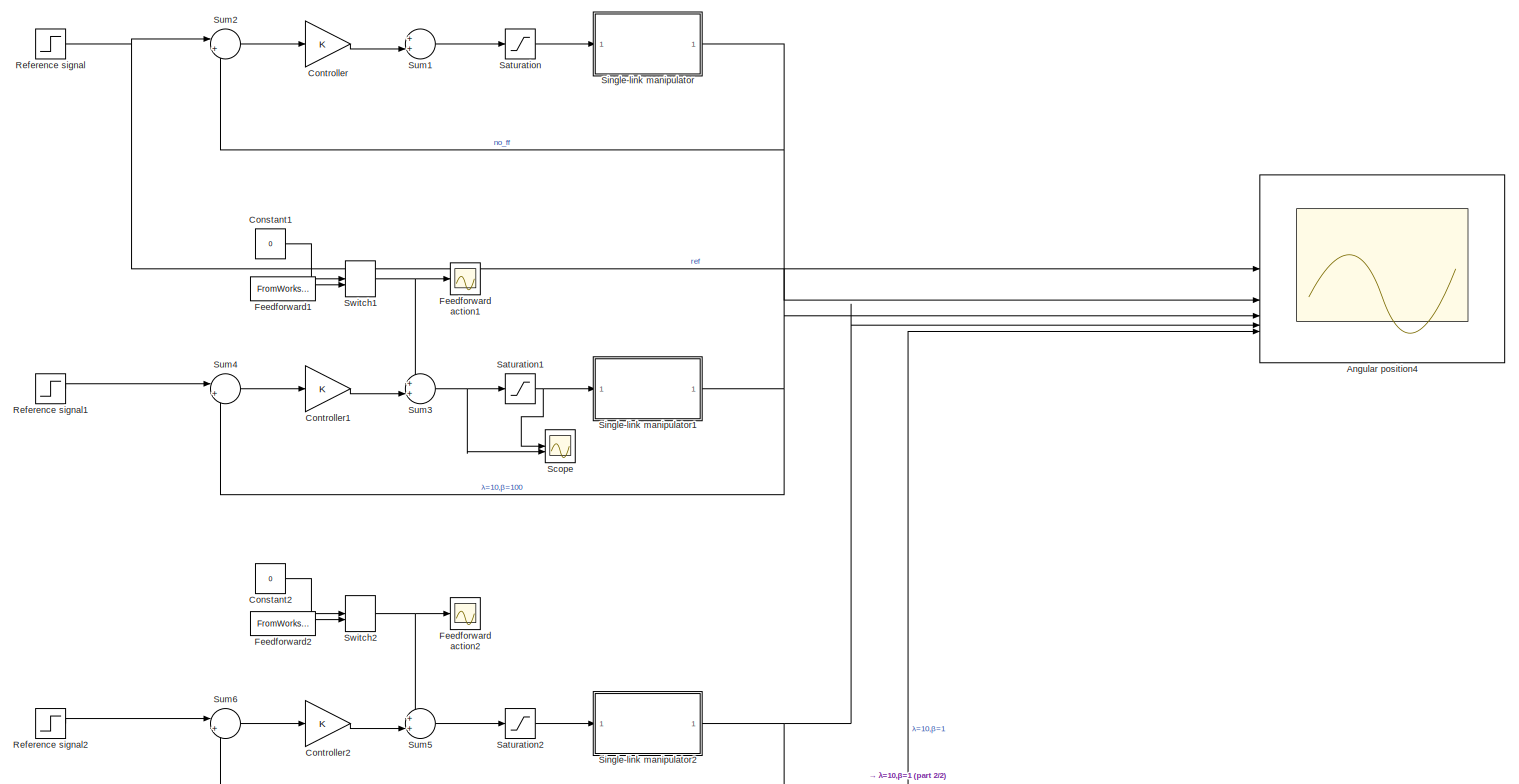
[diagram: root canvas - part 1/2, full width, top band]
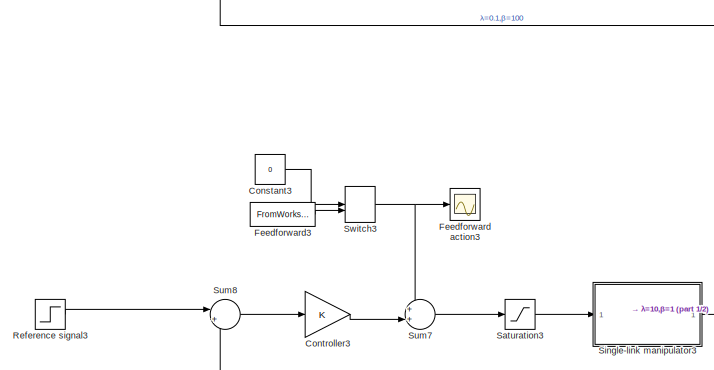
[diagram: root canvas - part 2/2, bottom left region]
MODEL slx_018ba44276c1
KIND model
CONFIG AbsTol = auto
CONFIG EnableMultiTasking = off
CONFIG FixedStep = auto
CONFIG MaxStep = auto
CONFIG MinStep = auto
CONFIG RelTol = 1e-3
CONFIG SampleTimeConstraint = Unconstrained
CONFIG SolverName = VariableStepAuto
CONFIG StartTime = 0.0
CONFIG StopTime = 20.0
BLOCK [Scope] Angular position4
  ActiveDisplayYMaximum = 7.3016592606509452
  ActiveDisplayYMinimum = 0.85138272898459544
  DataLoggingVariableName = ScopeData7
  Floating = off
  GraphicalSettings = {"AxesScalingProperties":{"AlignXAxis":"Center","AlignYAxis":"Center","AutoScaleXAxisLimits":false,"AxesScaling":"Manual","AxesScalingNumUpdates":10,"ExpandOnly":true,"ScaleAxesLimitsAtStop":false,"XAxisDataRange":100,"YAxisDataRange":80},"DisplayProperties":{"ColorOrder":["auto","auto","auto","auto","auto","auto","auto","auto","auto","auto","auto","auto","auto","auto","auto","auto","auto","auto",...<+2470ch>
  MultipleDisplayCache = [{"MaxYLimMag":11.29005530633327,"MaxYLimReal":7.3016592606509452,"MinYLimMag":0,"MinYLimReal":0.85138272898459544,"PlotAsMagnitudePhase":false,"ShowGrid":true,"ShowLegend":true,"Title":"%<SignalLabel>","YLabel":""}]
  NumInputPorts = 5
  ScopeFrameLocation = window
  ShowLegend = on
  Visible = on
  WasSavedAsWebScope = on
  WindowPosition = [0.000000,12.000000,1280.000000,697.000000,]
BLOCK [Constant] Constant1
  Value = 0
BLOCK [Constant] Constant2
  Value = 0
BLOCK [Constant] Constant3
  Value = 0
BLOCK [Gain] Controller
BLOCK [Gain] Controller1
BLOCK [Gain] Controller2
BLOCK [Gain] Controller3
BLOCK [Scope] Feedforward action1
  ActiveDisplayYMaximum = 1
  ActiveDisplayYMinimum = -1
  DataLoggingVariableName = ScopeData2
  Floating = off
  GraphicalSettings = {"Style":{"BackgroundColor":[0.12941176470588237,0.12941176470588237,0.12941176470588237],"AxesColor":[0.07058823529411765,0.07058823529411765,0.07058823529411765],"LabelsColor":[0.8509803921568627,0.8509803921568627,0.8509803921568627],"PreserveColors":false,"Visible":[true],"LineStyle":["-"],"LineWidth":[1.5],"BarWidth":[0.9],"LineColor":["auto"],"LineFaceAlpha":[1],"LineEdgeAlpha":[1],"Marker":...<+1898ch>
  MultipleDisplayCache = [{"MaxYLimMag":1,"MaxYLimReal":1,"MinYLimMag":0,"MinYLimReal":-1,"PlotAsMagnitudePhase":false,"ShowGrid":true,"ShowLegend":false,"Title":"%<SignalLabel>","YLabel":""}]
  NumInputPorts = 1
  ScopeFrameLocation = window
  WasSavedAsWebScope = on
  WindowPosition = [360.000000,150.000000,560.000000,420.000000,]
BLOCK [Scope] Feedforward action2
  ActiveDisplayYMaximum = 6.26117
  ActiveDisplayYMinimum = -1.22324
  DataLoggingVariableName = ScopeData4
  Floating = off
  GraphicalSettings = {"GraphicalSettings":{"LegacySettings":true,"Style":{"Style":{"AxesColor":"[0 0 0]","ChannelNames":[""],"ColorOrder":"[1 1 0.0666666666666667;0.0745098039215686 0.623529411764706 1;1 0.411764705882353 0.16078431372549;0.392156862745098 0.831372549019608 0.0745098039215686;0.717647058823529 0.274509803921569 1;0.0588235294117647 1 1;1 0.0745098039215686 0.650980392156863]","CurrentConfiguration":"e...<+343ch>
  MultipleDisplayCache = [{"MaxYLimMag":6.26117,"MaxYLimReal":6.26117,"MinYLimMag":0,"MinYLimReal":-1.22324,"PlotAsMagnitudePhase":false,"ShowGrid":true,"ShowLegend":false,"Title":"%<SignalLabel>","YLabel":""}]
  NumInputPorts = 1
  WasSavedAsWebScope = on
  WindowPosition = [843 377 560 420]
BLOCK [Scope] Feedforward action3
  ActiveDisplayYMaximum = 51.544640745006795
  ActiveDisplayYMinimum = -7.486949359416748
  DataLoggingVariableName = ScopeData6
  Floating = off
  GraphicalSettings = {"Style":{"BackgroundColor":[0.12941176470588237,0.12941176470588237,0.12941176470588237],"AxesColor":[0.07058823529411765,0.07058823529411765,0.07058823529411765],"LabelsColor":[0.8509803921568627,0.8509803921568627,0.8509803921568627],"PreserveColors":false,"Visible":[true],"LineStyle":["-"],"LineWidth":[1.5],"BarWidth":[0.9],"LineColor":["auto"],"LineFaceAlpha":[1],"LineEdgeAlpha":[1],"Marker":...<+1898ch>
  MultipleDisplayCache = [{"MaxYLimMag":51.544640745006795,"MaxYLimReal":51.544640745006795,"MinYLimMag":0,"MinYLimReal":-7.486949359416748,"PlotAsMagnitudePhase":false,"ShowGrid":true,"ShowLegend":false,"Title":"%<SignalLabel>","YLabel":""}]
  NumInputPorts = 1
  ScopeFrameLocation = window
  WasSavedAsWebScope = on
  WindowPosition = [1.000000,1.000000,1280.000000,697.000000,]
BLOCK [FromWorkspace] Feedforward1
  VariableName = [t yf_matrix(:,1)]
BLOCK [FromWorkspace] Feedforward2
  VariableName = [t yf_matrix(:,2)]
BLOCK [FromWorkspace] Feedforward3
  VariableName = [t yf_matrix(:,3)]
BLOCK [Step] Reference signal
  After = 10
  SampleTime = 0
BLOCK [Step] Reference signal1
  After = 10
  SampleTime = 0
BLOCK [Step] Reference signal2
  After = 10
  SampleTime = 0
BLOCK [Step] Reference signal3
  After = 10
  SampleTime = 0
BLOCK [Saturate] Saturation
  LowerLimit = -10
  UpperLimit = 10
BLOCK [Saturate] Saturation1
  LowerLimit = -10
  UpperLimit = 10
BLOCK [Saturate] Saturation2
  LowerLimit = -10
  UpperLimit = 10
BLOCK [Saturate] Saturation3
  LowerLimit = -10
  UpperLimit = 10
BLOCK [Scope] Scope
  ActiveDisplayYMaximum = 17.166429157712368
  ActiveDisplayYMinimum = -1.0568519510982064
  Floating = off
  GraphicalSettings = {"Style":{"BackgroundColor":[0.12941176470588237,0.12941176470588237,0.12941176470588237],"AxesColor":[0.07058823529411765,0.07058823529411765,0.07058823529411765],"LabelsColor":[0.8509803921568627,0.8509803921568627,0.8509803921568627],"PreserveColors":false,"Visible":[true,true],"LineStyle":["-","-"],"LineWidth":[1.5,1.5],"BarWidth":[0.9,0.9],"LineColor":["auto","auto"],"LineFaceAlpha":[1,1],"Li...<+2403ch>
  MultipleDisplayCache = [{"MaxYLimMag":18.266816592049281,"MaxYLimReal":17.166429157712368,"MinYLimMag":0,"MinYLimReal":-1.0568519510982064,"PlotAsMagnitudePhase":false,"ShowGrid":true,"ShowLegend":false,"Title":"%<SignalLabel>","YLabel":""}]
  NumInputPorts = 2
  ScopeFrameLocation = window
  WasSavedAsWebScope = on
  WindowPosition = [360.000000,150.000000,560.000000,420.000000,]
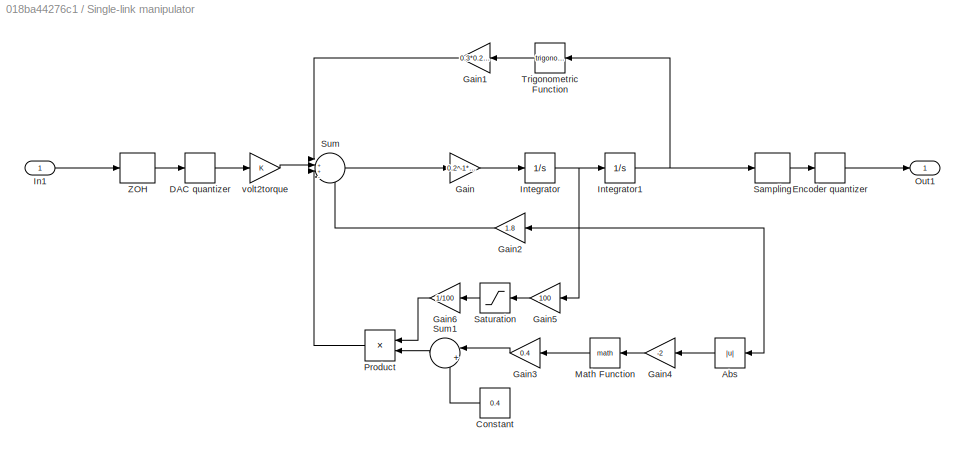
BLOCK [SubSystem] Single-link manipulator
BLOCK [Abs] Single-link manipulator/Abs
  NameLocation = top
  SaturateOnIntegerOverflow = off
BLOCK [Constant] Single-link manipulator/Constant
  NameLocation = top
  Value = 0.4
BLOCK [Quantizer] Single-link manipulator/DAC quantizer
  QuantizationInterval = 10/2^13
BLOCK [Quantizer] Single-link manipulator/Encoder quantizer
  QuantizationInterval = 2*pi/3000
BLOCK [Gain] Single-link manipulator/Gain
  Gain = 0.2^-1*0.3^-2
BLOCK [Gain] Single-link manipulator/Gain1
  Gain = 0.3*0.2*9.8
  NameLocation = top
BLOCK [Gain] Single-link manipulator/Gain2
  Gain = 1.8
  NameLocation = top
BLOCK [Gain] Single-link manipulator/Gain3
  Gain = 0.4
  NameLocation = top
BLOCK [Gain] Single-link manipulator/Gain4
  Gain = -2
  NameLocation = top
BLOCK [Gain] Single-link manipulator/Gain5
  Gain = 100
  NameLocation = top
BLOCK [Gain] Single-link manipulator/Gain6
  Gain = 1/100
  NameLocation = top
BLOCK [Inport] Single-link manipulator/In1
BLOCK [Integrator] Single-link manipulator/Integrator
BLOCK [Integrator] Single-link manipulator/Integrator1
BLOCK [Math] Single-link manipulator/Math Function
  NameLocation = top
BLOCK [Outport] Single-link manipulator/Out1
BLOCK [Product] Single-link manipulator/Product
  NameLocation = top
BLOCK [ZeroOrderHold] Single-link manipulator/Sampling
  SampleTime = 0.001
BLOCK [Saturate] Single-link manipulator/Saturation
  LowerLimit = -1
  NameLocation = top
  UpperLimit = 1
BLOCK [Sum] Single-link manipulator/Sum
  Inputs = |++--
BLOCK [Sum] Single-link manipulator/Sum1
  Inputs = |++
  NameLocation = top
BLOCK [Trigonometry] Single-link manipulator/Trigonometric Function
  NameLocation = top
BLOCK [ZeroOrderHold] Single-link manipulator/ZOH
  SampleTime = 0.001
BLOCK [Gain] Single-link manipulator/volt2torque
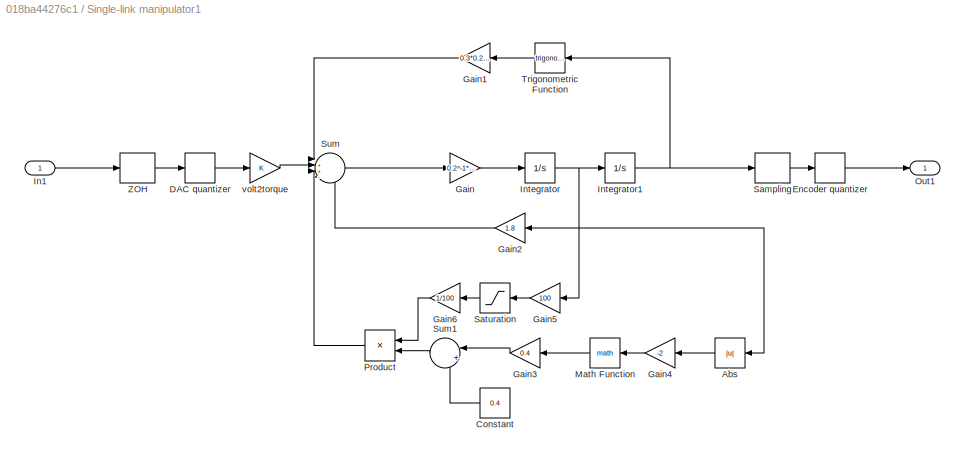
BLOCK [SubSystem] Single-link manipulator1
BLOCK [Abs] Single-link manipulator1/Abs
  NameLocation = top
  SaturateOnIntegerOverflow = off
BLOCK [Constant] Single-link manipulator1/Constant
  NameLocation = top
  Value = 0.4
BLOCK [Quantizer] Single-link manipulator1/DAC quantizer
  QuantizationInterval = 10/2^13
BLOCK [Quantizer] Single-link manipulator1/Encoder quantizer
  QuantizationInterval = 2*pi/3000
BLOCK [Gain] Single-link manipulator1/Gain
  Gain = 0.2^-1*0.3^-2
BLOCK [Gain] Single-link manipulator1/Gain1
  Gain = 0.3*0.2*9.8
  NameLocation = top
BLOCK [Gain] Single-link manipulator1/Gain2
  Gain = 1.8
  NameLocation = top
BLOCK [Gain] Single-link manipulator1/Gain3
  Gain = 0.4
  NameLocation = top
BLOCK [Gain] Single-link manipulator1/Gain4
  Gain = -2
  NameLocation = top
BLOCK [Gain] Single-link manipulator1/Gain5
  Gain = 100
  NameLocation = top
BLOCK [Gain] Single-link manipulator1/Gain6
  Gain = 1/100
  NameLocation = top
BLOCK [Inport] Single-link manipulator1/In1
BLOCK [Integrator] Single-link manipulator1/Integrator
BLOCK [Integrator] Single-link manipulator1/Integrator1
BLOCK [Math] Single-link manipulator1/Math Function
  NameLocation = top
BLOCK [Outport] Single-link manipulator1/Out1
BLOCK [Product] Single-link manipulator1/Product
  NameLocation = top
BLOCK [ZeroOrderHold] Single-link manipulator1/Sampling
  SampleTime = 0.001
BLOCK [Saturate] Single-link manipulator1/Saturation
  LowerLimit = -1
  NameLocation = top
  UpperLimit = 1
BLOCK [Sum] Single-link manipulator1/Sum
  Inputs = |++--
BLOCK [Sum] Single-link manipulator1/Sum1
  Inputs = |++
  NameLocation = top
BLOCK [Trigonometry] Single-link manipulator1/Trigonometric Function
  NameLocation = top
BLOCK [ZeroOrderHold] Single-link manipulator1/ZOH
  SampleTime = 0.001
BLOCK [Gain] Single-link manipulator1/volt2torque
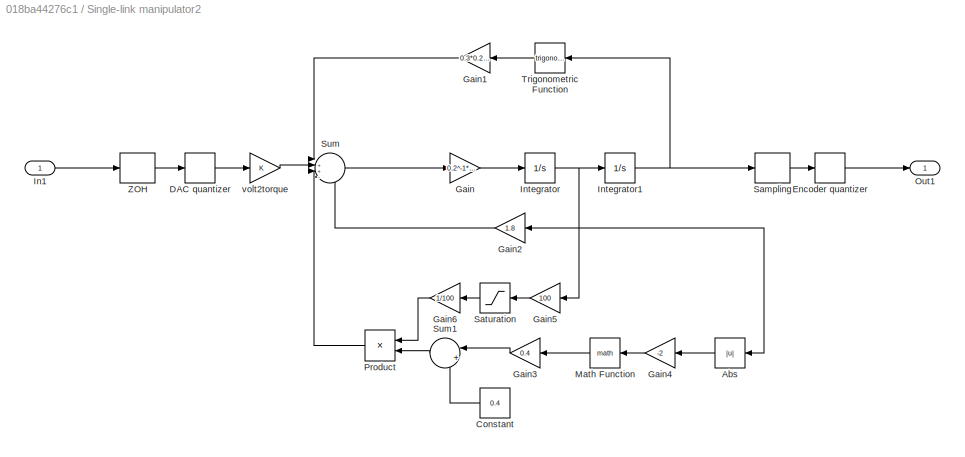
BLOCK [SubSystem] Single-link manipulator2
BLOCK [Abs] Single-link manipulator2/Abs
  NameLocation = top
  SaturateOnIntegerOverflow = off
BLOCK [Constant] Single-link manipulator2/Constant
  NameLocation = top
  Value = 0.4
BLOCK [Quantizer] Single-link manipulator2/DAC quantizer
  QuantizationInterval = 10/2^13
BLOCK [Quantizer] Single-link manipulator2/Encoder quantizer
  QuantizationInterval = 2*pi/3000
BLOCK [Gain] Single-link manipulator2/Gain
  Gain = 0.2^-1*0.3^-2
BLOCK [Gain] Single-link manipulator2/Gain1
  Gain = 0.3*0.2*9.8
  NameLocation = top
BLOCK [Gain] Single-link manipulator2/Gain2
  Gain = 1.8
  NameLocation = top
BLOCK [Gain] Single-link manipulator2/Gain3
  Gain = 0.4
  NameLocation = top
BLOCK [Gain] Single-link manipulator2/Gain4
  Gain = -2
  NameLocation = top
BLOCK [Gain] Single-link manipulator2/Gain5
  Gain = 100
  NameLocation = top
BLOCK [Gain] Single-link manipulator2/Gain6
  Gain = 1/100
  NameLocation = top
BLOCK [Inport] Single-link manipulator2/In1
BLOCK [Integrator] Single-link manipulator2/Integrator
BLOCK [Integrator] Single-link manipulator2/Integrator1
BLOCK [Math] Single-link manipulator2/Math Function
  NameLocation = top
BLOCK [Outport] Single-link manipulator2/Out1
BLOCK [Product] Single-link manipulator2/Product
  NameLocation = top
BLOCK [ZeroOrderHold] Single-link manipulator2/Sampling
  SampleTime = 0.001
BLOCK [Saturate] Single-link manipulator2/Saturation
  LowerLimit = -1
  NameLocation = top
  UpperLimit = 1
BLOCK [Sum] Single-link manipulator2/Sum
  Inputs = |++--
BLOCK [Sum] Single-link manipulator2/Sum1
  Inputs = |++
  NameLocation = top
BLOCK [Trigonometry] Single-link manipulator2/Trigonometric Function
  NameLocation = top
BLOCK [ZeroOrderHold] Single-link manipulator2/ZOH
  SampleTime = 0.001
BLOCK [Gain] Single-link manipulator2/volt2torque
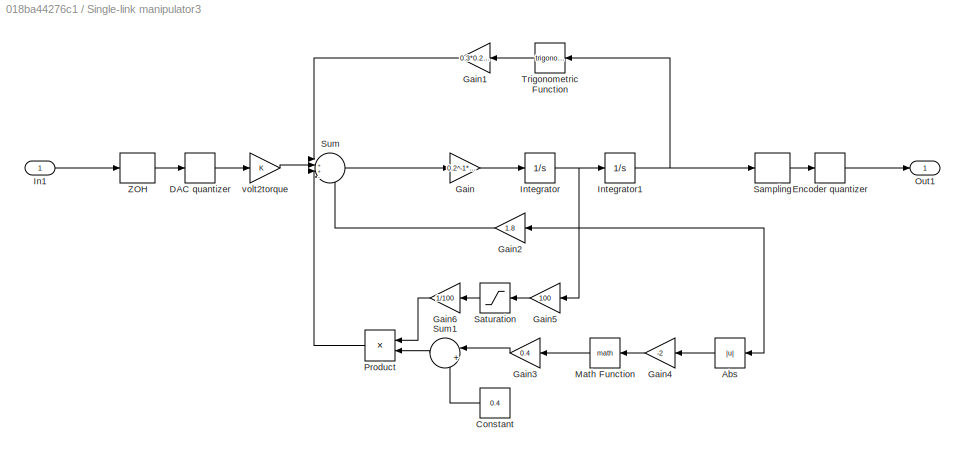
BLOCK [SubSystem] Single-link manipulator3
BLOCK [Abs] Single-link manipulator3/Abs
  NameLocation = top
  SaturateOnIntegerOverflow = off
BLOCK [Constant] Single-link manipulator3/Constant
  NameLocation = top
  Value = 0.4
BLOCK [Quantizer] Single-link manipulator3/DAC quantizer
  QuantizationInterval = 10/2^13
BLOCK [Quantizer] Single-link manipulator3/Encoder quantizer
  QuantizationInterval = 2*pi/3000
BLOCK [Gain] Single-link manipulator3/Gain
  Gain = 0.2^-1*0.3^-2
BLOCK [Gain] Single-link manipulator3/Gain1
  Gain = 0.3*0.2*9.8
  NameLocation = top
BLOCK [Gain] Single-link manipulator3/Gain2
  Gain = 1.8
  NameLocation = top
BLOCK [Gain] Single-link manipulator3/Gain3
  Gain = 0.4
  NameLocation = top
BLOCK [Gain] Single-link manipulator3/Gain4
  Gain = -2
  NameLocation = top
BLOCK [Gain] Single-link manipulator3/Gain5
  Gain = 100
  NameLocation = top
BLOCK [Gain] Single-link manipulator3/Gain6
  Gain = 1/100
  NameLocation = top
BLOCK [Inport] Single-link manipulator3/In1
BLOCK [Integrator] Single-link manipulator3/Integrator
BLOCK [Integrator] Single-link manipulator3/Integrator1
BLOCK [Math] Single-link manipulator3/Math Function
  NameLocation = top
BLOCK [Outport] Single-link manipulator3/Out1
BLOCK [Product] Single-link manipulator3/Product
  NameLocation = top
BLOCK [ZeroOrderHold] Single-link manipulator3/Sampling
  SampleTime = 0.001
BLOCK [Saturate] Single-link manipulator3/Saturation
  LowerLimit = -1
  NameLocation = top
  UpperLimit = 1
BLOCK [Sum] Single-link manipulator3/Sum
  Inputs = |++--
BLOCK [Sum] Single-link manipulator3/Sum1
  Inputs = |++
  NameLocation = top
BLOCK [Trigonometry] Single-link manipulator3/Trigonometric Function
  NameLocation = top
BLOCK [ZeroOrderHold] Single-link manipulator3/ZOH
  SampleTime = 0.001
BLOCK [Gain] Single-link manipulator3/volt2torque
BLOCK [Sum] Sum1
  Inputs = ++|
BLOCK [Sum] Sum2
  Inputs = |+-
BLOCK [Sum] Sum3
  Inputs = ++|
BLOCK [Sum] Sum4
  Inputs = |+-
BLOCK [Sum] Sum5
  Inputs = ++|
BLOCK [Sum] Sum6
  Inputs = |+-
BLOCK [Sum] Sum7
  Inputs = ++|
BLOCK [Sum] Sum8
  Inputs = |+-
BLOCK [ManualSwitch] Switch1
  CurrentSetting = 0
BLOCK [ManualSwitch] Switch2
  CurrentSetting = 0
BLOCK [ManualSwitch] Switch3
  CurrentSetting = 0
LINE Constant1:1 -> Switch1:1
LINE Constant2:1 -> Switch2:1
LINE Constant3:1 -> Switch3:1
LINE Controller1:1 -> Sum3:2
LINE Controller2:1 -> Sum5:2
LINE Controller3:1 -> Sum7:2
LINE Controller:1 -> Sum1:2
LINE Feedforward1:1 -> Switch1:2
LINE Feedforward2:1 -> Switch2:2
LINE Feedforward3:1 -> Switch3:2
LINE Reference signal1:1 -> Sum4:1
LINE Reference signal2:1 -> Sum6:1
LINE Reference signal3:1 -> Sum8:1
NET Reference signal:1 -> Angular position4:1, Sum2:1
NET Saturation1:1 -> Scope:1, Single-link manipulator1:1
LINE Saturation2:1 -> Single-link manipulator2:1
LINE Saturation3:1 -> Single-link manipulator3:1
LINE Saturation:1 -> Single-link manipulator:1
LINE Single-link manipulator/Abs:1 -> Single-link manipulator/Gain4:1
LINE Single-link manipulator/Constant:1 -> Single-link manipulator/Sum1:2
LINE Single-link manipulator/DAC quantizer:1 -> Single-link manipulator/volt2torque:1
LINE Single-link manipulator/Encoder quantizer:1 -> Single-link manipulator/Out1:1
LINE Single-link manipulator/Gain1:1 -> Single-link manipulator/Sum:1
LINE Single-link manipulator/Gain2:1 -> Single-link manipulator/Sum:4
LINE Single-link manipulator/Gain3:1 -> Single-link manipulator/Sum1:1
LINE Single-link manipulator/Gain4:1 -> Single-link manipulator/Math Function:1
LINE Single-link manipulator/Gain5:1 -> Single-link manipulator/Saturation:1
LINE Single-link manipulator/Gain6:1 -> Single-link manipulator/Product:1
LINE Single-link manipulator/Gain:1 -> Single-link manipulator/Integrator:1
LINE Single-link manipulator/In1:1 -> Single-link manipulator/ZOH:1
NET Single-link manipulator/Integrator1:1 -> Single-link manipulator/Sampling:1, Single-link manipulator/Trigonometric Function:1
NET Single-link manipulator/Integrator:1 -> Single-link manipulator/Abs:1, Single-link manipulator/Gain2:1, Single-link manipulator/Gain5:1, Single-link manipulator/Integrator1:1
LINE Single-link manipulator/Math Function:1 -> Single-link manipulator/Gain3:1
LINE Single-link manipulator/Product:1 -> Single-link manipulator/Sum:3
LINE Single-link manipulator/Sampling:1 -> Single-link manipulator/Encoder quantizer:1
LINE Single-link manipulator/Saturation:1 -> Single-link manipulator/Gain6:1
LINE Single-link manipulator/Sum1:1 -> Single-link manipulator/Product:2
LINE Single-link manipulator/Sum:1 -> Single-link manipulator/Gain:1
LINE Single-link manipulator/Trigonometric Function:1 -> Single-link manipulator/Gain1:1
LINE Single-link manipulator/ZOH:1 -> Single-link manipulator/DAC quantizer:1
LINE Single-link manipulator/volt2torque:1 -> Single-link manipulator/Sum:2
LINE Single-link manipulator1/Abs:1 -> Single-link manipulator1/Gain4:1
LINE Single-link manipulator1/Constant:1 -> Single-link manipulator1/Sum1:2
LINE Single-link manipulator1/DAC quantizer:1 -> Single-link manipulator1/volt2torque:1
LINE Single-link manipulator1/Encoder quantizer:1 -> Single-link manipulator1/Out1:1
LINE Single-link manipulator1/Gain1:1 -> Single-link manipulator1/Sum:1
LINE Single-link manipulator1/Gain2:1 -> Single-link manipulator1/Sum:4
LINE Single-link manipulator1/Gain3:1 -> Single-link manipulator1/Sum1:1
LINE Single-link manipulator1/Gain4:1 -> Single-link manipulator1/Math Function:1
LINE Single-link manipulator1/Gain5:1 -> Single-link manipulator1/Saturation:1
LINE Single-link manipulator1/Gain6:1 -> Single-link manipulator1/Product:1
LINE Single-link manipulator1/Gain:1 -> Single-link manipulator1/Integrator:1
LINE Single-link manipulator1/In1:1 -> Single-link manipulator1/ZOH:1
NET Single-link manipulator1/Integrator1:1 -> Single-link manipulator1/Sampling:1, Single-link manipulator1/Trigonometric Function:1
NET Single-link manipulator1/Integrator:1 -> Single-link manipulator1/Abs:1, Single-link manipulator1/Gain2:1, Single-link manipulator1/Gain5:1, Single-link manipulator1/Integrator1:1
LINE Single-link manipulator1/Math Function:1 -> Single-link manipulator1/Gain3:1
LINE Single-link manipulator1/Product:1 -> Single-link manipulator1/Sum:3
LINE Single-link manipulator1/Sampling:1 -> Single-link manipulator1/Encoder quantizer:1
LINE Single-link manipulator1/Saturation:1 -> Single-link manipulator1/Gain6:1
LINE Single-link manipulator1/Sum1:1 -> Single-link manipulator1/Product:2
LINE Single-link manipulator1/Sum:1 -> Single-link manipulator1/Gain:1
LINE Single-link manipulator1/Trigonometric Function:1 -> Single-link manipulator1/Gain1:1
LINE Single-link manipulator1/ZOH:1 -> Single-link manipulator1/DAC quantizer:1
LINE Single-link manipulator1/volt2torque:1 -> Single-link manipulator1/Sum:2
NET Single-link manipulator1:1 -> Angular position4:3, Sum4:2
LINE Single-link manipulator2/Abs:1 -> Single-link manipulator2/Gain4:1
LINE Single-link manipulator2/Constant:1 -> Single-link manipulator2/Sum1:2
LINE Single-link manipulator2/DAC quantizer:1 -> Single-link manipulator2/volt2torque:1
LINE Single-link manipulator2/Encoder quantizer:1 -> Single-link manipulator2/Out1:1
LINE Single-link manipulator2/Gain1:1 -> Single-link manipulator2/Sum:1
LINE Single-link manipulator2/Gain2:1 -> Single-link manipulator2/Sum:4
LINE Single-link manipulator2/Gain3:1 -> Single-link manipulator2/Sum1:1
LINE Single-link manipulator2/Gain4:1 -> Single-link manipulator2/Math Function:1
LINE Single-link manipulator2/Gain5:1 -> Single-link manipulator2/Saturation:1
LINE Single-link manipulator2/Gain6:1 -> Single-link manipulator2/Product:1
LINE Single-link manipulator2/Gain:1 -> Single-link manipulator2/Integrator:1
LINE Single-link manipulator2/In1:1 -> Single-link manipulator2/ZOH:1
NET Single-link manipulator2/Integrator1:1 -> Single-link manipulator2/Sampling:1, Single-link manipulator2/Trigonometric Function:1
NET Single-link manipulator2/Integrator:1 -> Single-link manipulator2/Abs:1, Single-link manipulator2/Gain2:1, Single-link manipulator2/Gain5:1, Single-link manipulator2/Integrator1:1
LINE Single-link manipulator2/Math Function:1 -> Single-link manipulator2/Gain3:1
LINE Single-link manipulator2/Product:1 -> Single-link manipulator2/Sum:3
LINE Single-link manipulator2/Sampling:1 -> Single-link manipulator2/Encoder quantizer:1
LINE Single-link manipulator2/Saturation:1 -> Single-link manipulator2/Gain6:1
LINE Single-link manipulator2/Sum1:1 -> Single-link manipulator2/Product:2
LINE Single-link manipulator2/Sum:1 -> Single-link manipulator2/Gain:1
LINE Single-link manipulator2/Trigonometric Function:1 -> Single-link manipulator2/Gain1:1
LINE Single-link manipulator2/ZOH:1 -> Single-link manipulator2/DAC quantizer:1
LINE Single-link manipulator2/volt2torque:1 -> Single-link manipulator2/Sum:2
NET Single-link manipulator2:1 -> Angular position4:4, Sum6:2
LINE Single-link manipulator3/Abs:1 -> Single-link manipulator3/Gain4:1
LINE Single-link manipulator3/Constant:1 -> Single-link manipulator3/Sum1:2
LINE Single-link manipulator3/DAC quantizer:1 -> Single-link manipulator3/volt2torque:1
LINE Single-link manipulator3/Encoder quantizer:1 -> Single-link manipulator3/Out1:1
LINE Single-link manipulator3/Gain1:1 -> Single-link manipulator3/Sum:1
LINE Single-link manipulator3/Gain2:1 -> Single-link manipulator3/Sum:4
LINE Single-link manipulator3/Gain3:1 -> Single-link manipulator3/Sum1:1
LINE Single-link manipulator3/Gain4:1 -> Single-link manipulator3/Math Function:1
LINE Single-link manipulator3/Gain5:1 -> Single-link manipulator3/Saturation:1
LINE Single-link manipulator3/Gain6:1 -> Single-link manipulator3/Product:1
LINE Single-link manipulator3/Gain:1 -> Single-link manipulator3/Integrator:1
LINE Single-link manipulator3/In1:1 -> Single-link manipulator3/ZOH:1
NET Single-link manipulator3/Integrator1:1 -> Single-link manipulator3/Sampling:1, Single-link manipulator3/Trigonometric Function:1
NET Single-link manipulator3/Integrator:1 -> Single-link manipulator3/Abs:1, Single-link manipulator3/Gain2:1, Single-link manipulator3/Gain5:1, Single-link manipulator3/Integrator1:1
LINE Single-link manipulator3/Math Function:1 -> Single-link manipulator3/Gain3:1
LINE Single-link manipulator3/Product:1 -> Single-link manipulator3/Sum:3
LINE Single-link manipulator3/Sampling:1 -> Single-link manipulator3/Encoder quantizer:1
LINE Single-link manipulator3/Saturation:1 -> Single-link manipulator3/Gain6:1
LINE Single-link manipulator3/Sum1:1 -> Single-link manipulator3/Product:2
LINE Single-link manipulator3/Sum:1 -> Single-link manipulator3/Gain:1
LINE Single-link manipulator3/Trigonometric Function:1 -> Single-link manipulator3/Gain1:1
LINE Single-link manipulator3/ZOH:1 -> Single-link manipulator3/DAC quantizer:1
LINE Single-link manipulator3/volt2torque:1 -> Single-link manipulator3/Sum:2
NET Single-link manipulator3:1 -> Angular position4:5, Sum8:2
NET Single-link manipulator:1 -> Angular position4:2, Sum2:2
LINE Sum1:1 -> Saturation:1
LINE Sum2:1 -> Controller:1
NET Sum3:1 -> Saturation1:1, Scope:2
LINE Sum4:1 -> Controller1:1
LINE Sum5:1 -> Saturation2:1
LINE Sum6:1 -> Controller2:1
LINE Sum7:1 -> Saturation3:1
LINE Sum8:1 -> Controller3:1
NET Switch1:1 -> Feedforward action1:1, Sum3:1
NET Switch2:1 -> Feedforward action2:1, Sum5:1
NET Switch3:1 -> Feedforward action3:1, Sum7:1
note: NET lines group one-source signal fan-out (src -> all destinations, sorted); 1:1 wires keep LINE
